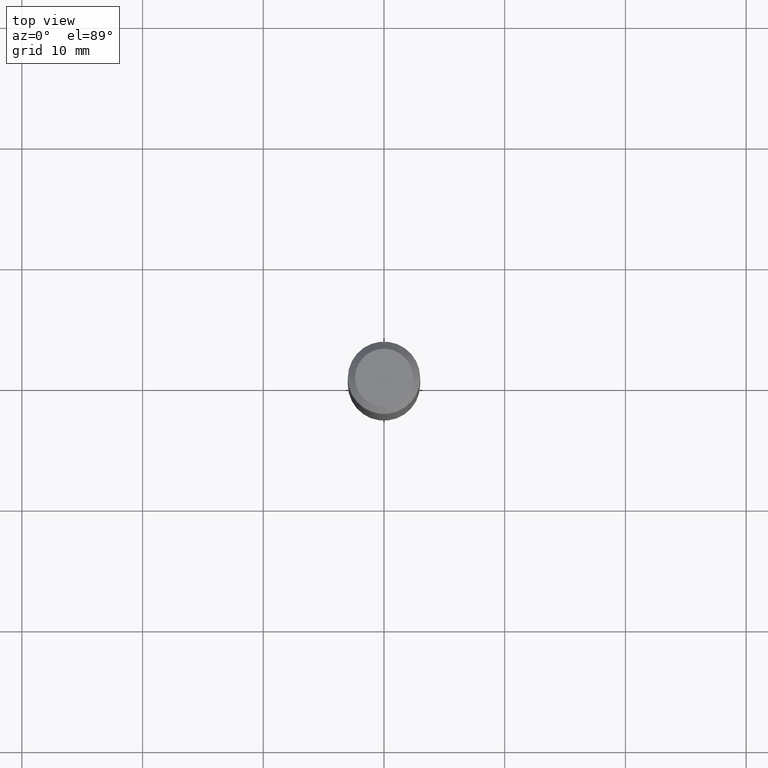
[diagram: clean part render]
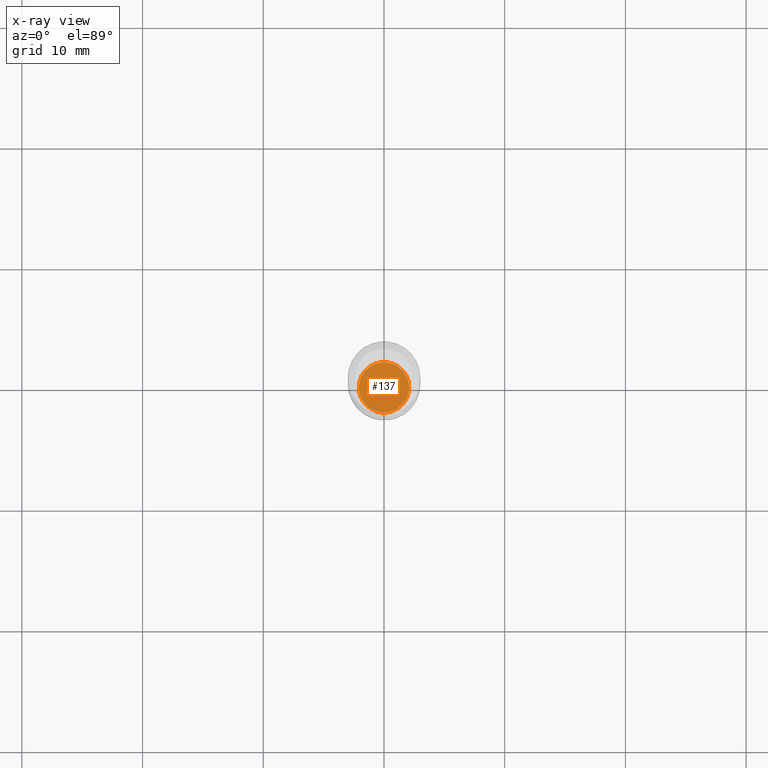
[diagram: x-ray — body ghosted, one internal face saturated and labeled with its STEP entity id]
A machine part, top view, then the same camera in x-ray: the body is ghosted and one INTERNAL B-rep face — a face not visible from any outside direction — is saturated and labeled: STEP entity #137.
In plain terms, the highlighted planar face has unit normal (-0, 0, 1).
Its self-contained STEP definition (entity closure, byte-faithful):
#15 = EDGE_LOOP ( 'NONE', ( #256, #150 ) ) ;
#46 = DIRECTION ( 'NONE',  ( -2.445468806185136597E-29, 3.491481338843145583E-15, 1.000000000000000000 ) ) ;
#55 = VERTEX_POINT ( 'NONE', #430 ) ;
#85 = PLANE ( 'NONE',  #145 ) ;
#111 = CIRCLE ( 'NONE', #449, 0.08219999999999999529 ) ;
#134 = CIRCLE ( 'NONE', #184, 0.08219999999999999529 ) ;
#137 = ADVANCED_FACE ( 'NONE', ( #195 ), #85, .F. ) ;
#145 = AXIS2_PLACEMENT_3D ( 'NONE', #207, #511, #395 ) ;
#150 = ORIENTED_EDGE ( 'NONE', *, *, #398, .F. ) ;
#169 = CARTESIAN_POINT ( 'NONE',  ( 4.500151697141887719E-29, -6.425023959739156537E-15, -1.840200000000000058 ) ) ;
#184 = AXIS2_PLACEMENT_3D ( 'NONE', #169, #46, #493 ) ;
#195 = FACE_OUTER_BOUND ( 'NONE', #15, .T. ) ;
#207 = CARTESIAN_POINT ( 'NONE',  ( 4.500151697141887719E-29, -6.425023959739156537E-15, -1.840200000000000058 ) ) ;
#222 = DIRECTION ( 'NONE',  ( -2.445468806185136597E-29, 3.491481338843145583E-15, 1.000000000000000000 ) ) ;
#256 = ORIENTED_EDGE ( 'NONE', *, *, #260, .F. ) ;
#259 = VERTEX_POINT ( 'NONE', #322 ) ;
#260 = EDGE_CURVE ( 'NONE', #55, #259, #134, .T. ) ;
#296 = CARTESIAN_POINT ( 'NONE',  ( 4.500151697141887719E-29, -6.425023959739156537E-15, -1.840200000000000058 ) ) ;
#322 = CARTESIAN_POINT ( 'NONE',  ( -0.08219999999999999529, -5.838308603770243411E-15, -1.840200000000000058 ) ) ;
#395 = DIRECTION ( 'NONE',  ( 1.000000000000000000, -6.982962677686265922E-15, 4.876176775795935793E-29 ) ) ;
#398 = EDGE_CURVE ( 'NONE', #259, #55, #111, .T. ) ;
#430 = CARTESIAN_POINT ( 'NONE',  ( 0.08219999999999999529, -6.999023491844967420E-15, -1.840200000000000058 ) ) ;
#445 = DIRECTION ( 'NONE',  ( 1.000000000000000000, -6.982962677686266711E-15, 0.000000000000000000 ) ) ;
#449 = AXIS2_PLACEMENT_3D ( 'NONE', #296, #222, #445 ) ;
#493 = DIRECTION ( 'NONE',  ( 1.000000000000000000, -6.982962677686266711E-15, 0.000000000000000000 ) ) ;
#511 = DIRECTION ( 'NONE',  ( -2.438088387897960049E-29, 3.491481338843145188E-15, 1.000000000000000000 ) ) ;